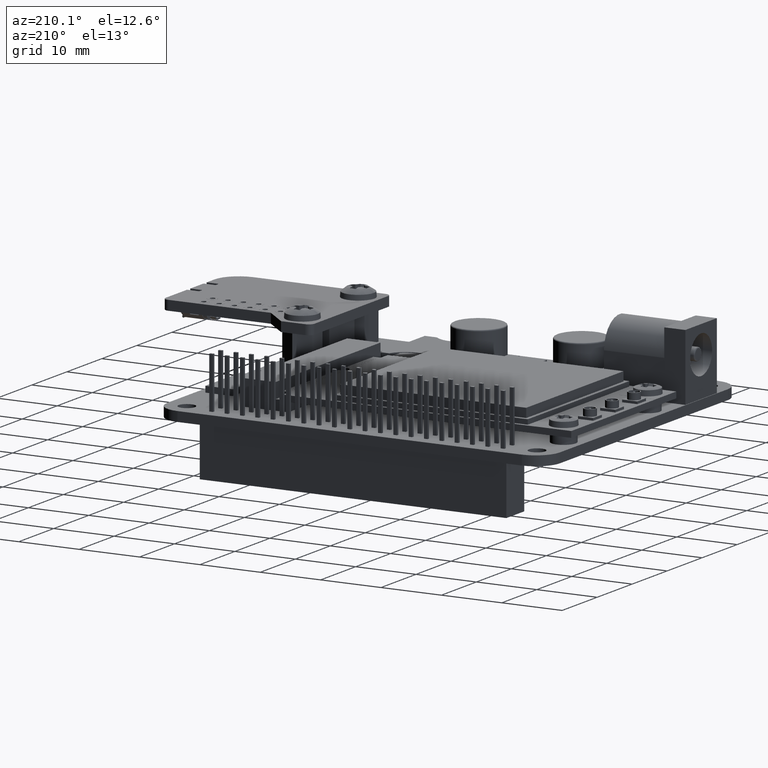
[diagram: clean part render]
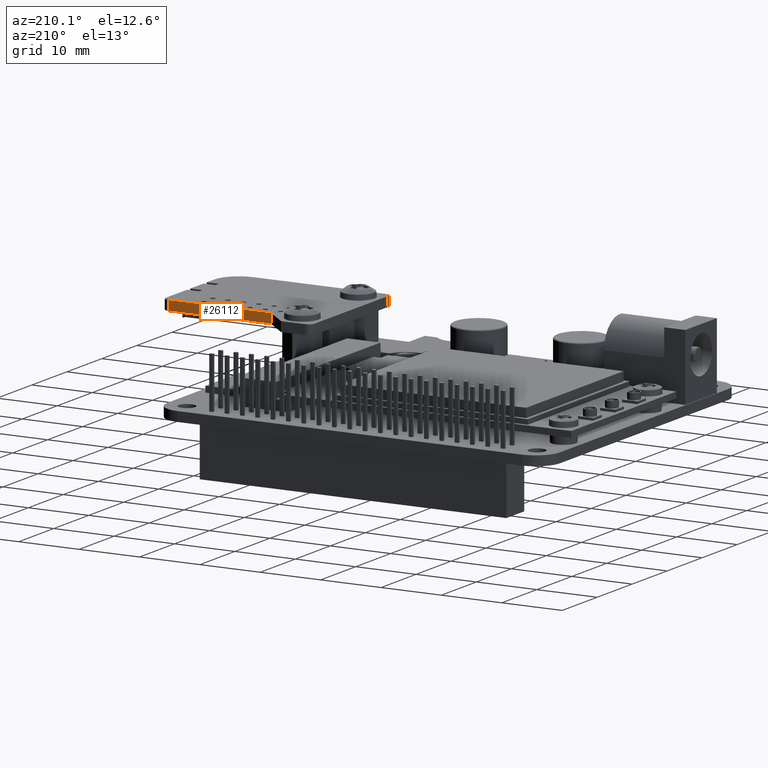
[diagram: same view with one face highlighted and labeled with its STEP entity id]
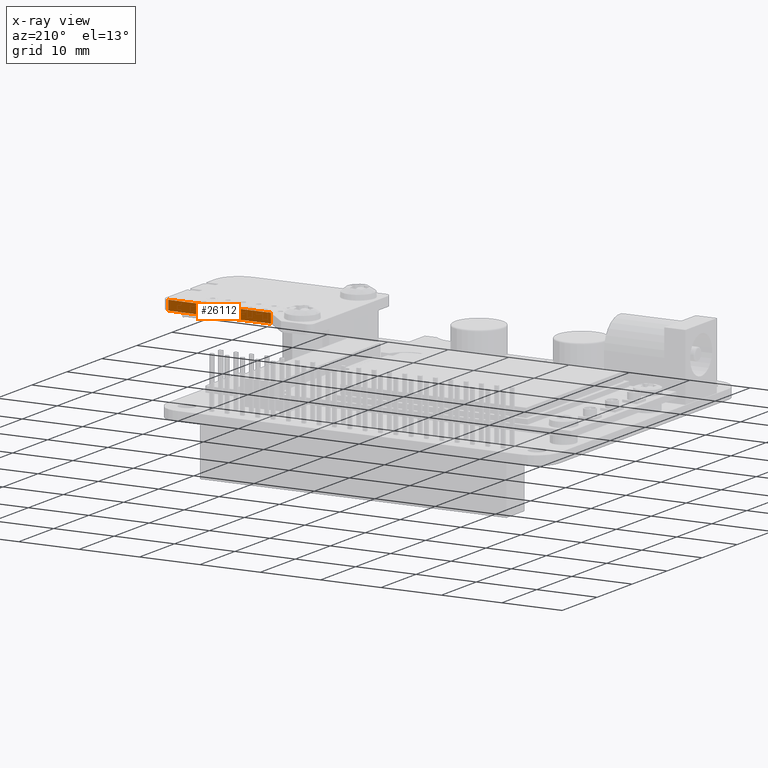
[diagram: x-ray of the same camera — body ghosted, the highlighted face saturated]
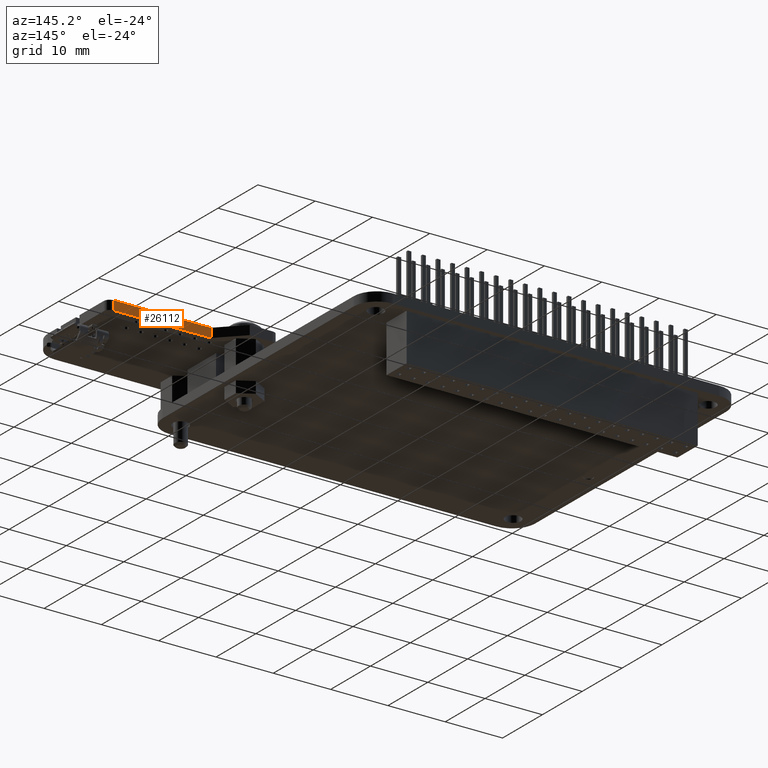
[diagram: same view with one face highlighted and labeled with its STEP entity id]
A machine part, auxiliary view. The second image highlights one B-rep face of the part: STEP entity #26112.
The next image is the same camera in x-ray: the body ghosted, the highlighted face saturated — about 0% of this face is hidden behind the body in this view.
A second angle (auxiliary view) of the same face is appended — the face is thin or edge-on in the first view.
In plain terms, the highlighted planar face has unit normal (-0, 1, 0).
Its self-contained STEP definition (entity closure, byte-faithful):
#1938=LINE('',#39517,#4885);
#1954=LINE('',#39584,#4901);
#1955=LINE('',#39587,#4902);
#1956=LINE('',#39588,#4903);
#4885=VECTOR('',#32192,10.);
#4901=VECTOR('',#32246,10.);
#4902=VECTOR('',#32249,10.);
#4903=VECTOR('',#32250,10.);
#6824=PLANE('',#27652);
#9430=FACE_OUTER_BOUND('',#11052,.T.);
#11052=EDGE_LOOP('',(#21874,#21875,#21876,#21877));
#13541=VERTEX_POINT('',#39514);
#13542=VERTEX_POINT('',#39516);
#13573=VERTEX_POINT('',#39580);
#13575=VERTEX_POINT('',#39586);
#16488=EDGE_CURVE('',#13541,#13542,#1938,.T.);
#16522=EDGE_CURVE('',#13542,#13573,#1954,.T.);
#16523=EDGE_CURVE('',#13541,#13575,#1955,.T.);
#16524=EDGE_CURVE('',#13573,#13575,#1956,.T.);
#21874=ORIENTED_EDGE('',*,*,#16522,.F.);
#21875=ORIENTED_EDGE('',*,*,#16488,.F.);
#21876=ORIENTED_EDGE('',*,*,#16523,.T.);
#21877=ORIENTED_EDGE('',*,*,#16524,.F.);
#26112=ADVANCED_FACE('',(#9430),#6824,.T.);
#27652=AXIS2_PLACEMENT_3D('',#39585,#32247,#32248);
#32192=DIRECTION('',(1.,6.78469626159818E-16,0.));
#32246=DIRECTION('',(0.,0.,1.));
#32247=DIRECTION('center_axis',(-6.78469626159818E-16,1.,0.));
#32248=DIRECTION('ref_axis',(-1.,-7.105427357601E-16,0.));
#32249=DIRECTION('',(0.,0.,1.));
#32250=DIRECTION('',(-1.,-6.78469626159818E-16,0.));
#39514=CARTESIAN_POINT('',(-4.49999999999999,9.49999999999999,-0.8));
#39516=CARTESIAN_POINT('',(12.5,9.5,-0.8));
#39517=CARTESIAN_POINT('',(13.5,9.5,-0.8));
#39580=CARTESIAN_POINT('',(12.5,9.5,0.8));
#39584=CARTESIAN_POINT('',(12.5,9.5,0.));
#39585=CARTESIAN_POINT('Origin',(13.5,9.5,0.));
#39586=CARTESIAN_POINT('',(-4.49999999999999,9.49999999999999,0.8));
#39587=CARTESIAN_POINT('',(-4.49999999999999,9.49999999999999,0.));
#39588=CARTESIAN_POINT('',(13.5,9.5,0.8));